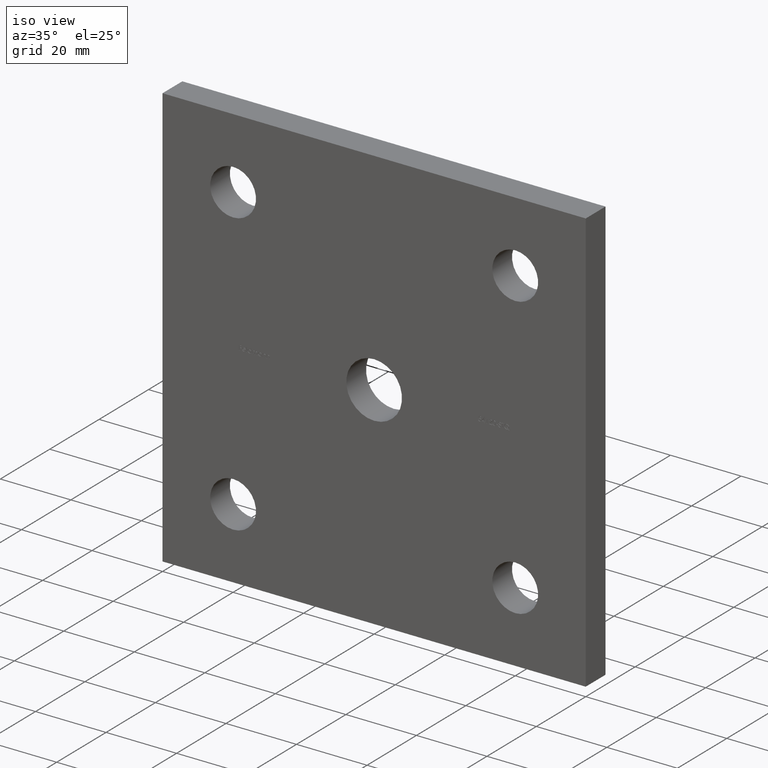
[diagram: clean part render]
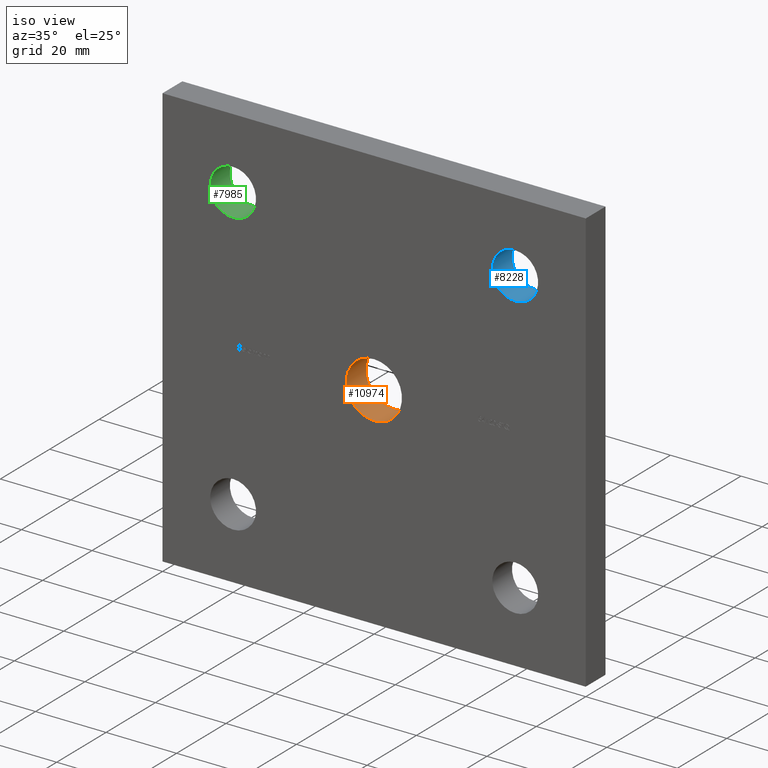
[diagram: same view with three faces highlighted in distinct colors, each labeled with its STEP entity id]
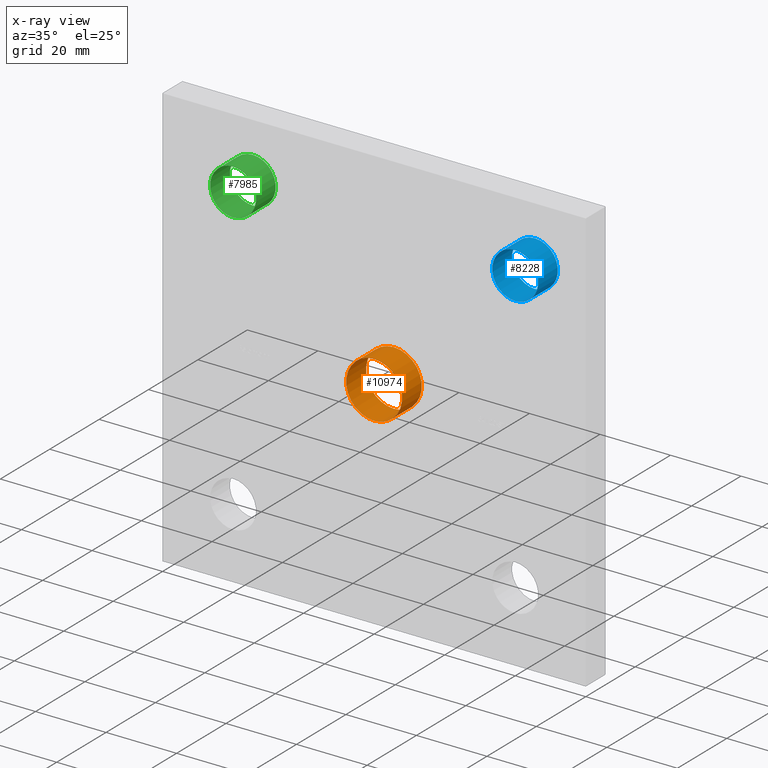
[diagram: x-ray of the same camera — body ghosted, the three highlighted faces saturated]
A machine part, iso view with three faces highlighted in distinct colors.
The next image is the same camera in x-ray (body ghosted, the three faces saturated) — at least one of them is partly hidden behind the body in this view.
Their STEP definitions:

[orange] entity #10974 — the highlighted cylindrical surface (bore or boss wall) has radius 7.9 mm, axis along (-0, 1, -0).
#495 = CARTESIAN_POINT ( 'NONE',  ( 0.000000000000000000, 8.000000000000000000, 7.900000000000000355 ) ) ;
#562 = DIRECTION ( 'NONE',  ( -0.000000000000000000, 1.000000000000000000, -0.000000000000000000 ) ) ;
#1687 = AXIS2_PLACEMENT_3D ( 'NONE', #10125, #5296, #3455 ) ;
#1738 = EDGE_CURVE ( 'NONE', #2426, #2426, #8070, .T. ) ;
#1809 = DIRECTION ( 'NONE',  ( 0.000000000000000000, 0.000000000000000000, 1.000000000000000000 ) ) ;
#1848 = EDGE_CURVE ( 'NONE', #8846, #8846, #11501, .T. ) ;
#2426 = VERTEX_POINT ( 'NONE', #3400 ) ;
#3400 = CARTESIAN_POINT ( 'NONE',  ( 0.000000000000000000, 0.000000000000000000, 7.900000000000000355 ) ) ;
#3455 = DIRECTION ( 'NONE',  ( 0.000000000000000000, 0.000000000000000000, 1.000000000000000000 ) ) ;
#3776 = CARTESIAN_POINT ( 'NONE',  ( 0.000000000000000000, 8.000000000000000000, 0.000000000000000000 ) ) ;
#4241 = FACE_OUTER_BOUND ( 'NONE', #10832, .T. ) ;
#5296 = DIRECTION ( 'NONE',  ( 0.000000000000000000, 1.000000000000000000, 0.000000000000000000 ) ) ;
#5694 = DIRECTION ( 'NONE',  ( 0.000000000000000000, 0.000000000000000000, 1.000000000000000000 ) ) ;
#5904 = AXIS2_PLACEMENT_3D ( 'NONE', #6418, #562, #1809 ) ;
#6418 = CARTESIAN_POINT ( 'NONE',  ( 0.000000000000000000, 0.000000000000000000, 0.000000000000000000 ) ) ;
#6842 = ORIENTED_EDGE ( 'NONE', *, *, #1738, .F. ) ;
#7659 = DIRECTION ( 'NONE',  ( 0.000000000000000000, 1.000000000000000000, 0.000000000000000000 ) ) ;
#7929 = ORIENTED_EDGE ( 'NONE', *, *, #1848, .T. ) ;
#8070 = CIRCLE ( 'NONE', #1687, 7.900000000000000355 ) ;
#8421 = CYLINDRICAL_SURFACE ( 'NONE', #5904, 7.900000000000000355 ) ;
#8582 = AXIS2_PLACEMENT_3D ( 'NONE', #3776, #7659, #5694 ) ;
#8846 = VERTEX_POINT ( 'NONE', #495 ) ;
#9612 = FACE_OUTER_BOUND ( 'NONE', #11816, .T. ) ;
#10125 = CARTESIAN_POINT ( 'NONE',  ( 0.000000000000000000, 0.000000000000000000, 0.000000000000000000 ) ) ;
#10832 = EDGE_LOOP ( 'NONE', ( #6842 ) ) ;
#10974 = ADVANCED_FACE ( 'NONE', ( #4241, #9612 ), #8421, .F. ) ;
#11501 = CIRCLE ( 'NONE', #8582, 7.900000000000000355 ) ;
#11816 = EDGE_LOOP ( 'NONE', ( #7929 ) ) ;

[blue] entity #8228 — the highlighted cylindrical surface (bore or boss wall) has radius 6.5 mm, axis along (-0, 1, -0).
#804 = CYLINDRICAL_SURFACE ( 'NONE', #8763, 6.499999999999999112 ) ;
#1804 = DIRECTION ( 'NONE',  ( -0.000000000000000000, 1.000000000000000000, -0.000000000000000000 ) ) ;
#2049 = ORIENTED_EDGE ( 'NONE', *, *, #7559, .T. ) ;
#2910 = EDGE_LOOP ( 'NONE', ( #2049 ) ) ;
#3019 = AXIS2_PLACEMENT_3D ( 'NONE', #7737, #9687, #4988 ) ;
#3361 = CARTESIAN_POINT ( 'NONE',  ( 40.00000000000000000, 0.000000000000000000, 40.00000000000000000 ) ) ;
#3662 = CARTESIAN_POINT ( 'NONE',  ( 40.00000000000000000, 0.000000000000000000, 40.00000000000000000 ) ) ;
#4988 = DIRECTION ( 'NONE',  ( 0.000000000000000000, 0.000000000000000000, 1.000000000000000000 ) ) ;
#5322 = FACE_OUTER_BOUND ( 'NONE', #2910, .T. ) ;
#5922 = CIRCLE ( 'NONE', #3019, 6.499999999999999112 ) ;
#6779 = AXIS2_PLACEMENT_3D ( 'NONE', #3361, #10994, #8993 ) ;
#6912 = VERTEX_POINT ( 'NONE', #10111 ) ;
#7257 = FACE_OUTER_BOUND ( 'NONE', #9307, .T. ) ;
#7275 = CARTESIAN_POINT ( 'NONE',  ( 40.00000000000000000, 8.000000000000000000, 46.50000000000000000 ) ) ;
#7357 = VERTEX_POINT ( 'NONE', #7275 ) ;
#7559 = EDGE_CURVE ( 'NONE', #7357, #7357, #5922, .T. ) ;
#7708 = DIRECTION ( 'NONE',  ( 0.000000000000000000, 0.000000000000000000, 1.000000000000000000 ) ) ;
#7737 = CARTESIAN_POINT ( 'NONE',  ( 40.00000000000000000, 8.000000000000000000, 40.00000000000000000 ) ) ;
#7963 = CIRCLE ( 'NONE', #6779, 6.499999999999999112 ) ;
#8228 = ADVANCED_FACE ( 'NONE', ( #7257, #5322 ), #804, .F. ) ;
#8559 = ORIENTED_EDGE ( 'NONE', *, *, #12302, .F. ) ;
#8763 = AXIS2_PLACEMENT_3D ( 'NONE', #3662, #1804, #7708 ) ;
#8993 = DIRECTION ( 'NONE',  ( 0.000000000000000000, 0.000000000000000000, 1.000000000000000000 ) ) ;
#9307 = EDGE_LOOP ( 'NONE', ( #8559 ) ) ;
#9687 = DIRECTION ( 'NONE',  ( 0.000000000000000000, 1.000000000000000000, 0.000000000000000000 ) ) ;
#10111 = CARTESIAN_POINT ( 'NONE',  ( 40.00000000000000000, 0.000000000000000000, 46.50000000000000000 ) ) ;
#10994 = DIRECTION ( 'NONE',  ( 0.000000000000000000, 1.000000000000000000, 0.000000000000000000 ) ) ;
#12302 = EDGE_CURVE ( 'NONE', #6912, #6912, #7963, .T. ) ;

[green] entity #7985 — the highlighted cylindrical surface (bore or boss wall) has radius 6.5 mm, axis along (-0, 1, -0).
#218 = FACE_OUTER_BOUND ( 'NONE', #7045, .T. ) ;
#708 = DIRECTION ( 'NONE',  ( 0.000000000000000000, 1.000000000000000000, 0.000000000000000000 ) ) ;
#787 = CARTESIAN_POINT ( 'NONE',  ( -40.00000000000000000, 8.000000000000000000, 40.00000000000000000 ) ) ;
#823 = CIRCLE ( 'NONE', #10438, 6.499999999999999112 ) ;
#1476 = CARTESIAN_POINT ( 'NONE',  ( -40.00000000000000000, 0.000000000000000000, 40.00000000000000000 ) ) ;
#1755 = DIRECTION ( 'NONE',  ( 0.000000000000000000, 1.000000000000000000, 0.000000000000000000 ) ) ;
#2253 = EDGE_LOOP ( 'NONE', ( #6329 ) ) ;
#2603 = CARTESIAN_POINT ( 'NONE',  ( -40.00000000000000000, 0.000000000000000000, 46.50000000000000000 ) ) ;
#2634 = CYLINDRICAL_SURFACE ( 'NONE', #12353, 6.499999999999999112 ) ;
#2855 = EDGE_CURVE ( 'NONE', #12138, #12138, #6406, .T. ) ;
#3657 = DIRECTION ( 'NONE',  ( 0.000000000000000000, 0.000000000000000000, 1.000000000000000000 ) ) ;
#4142 = CARTESIAN_POINT ( 'NONE',  ( -40.00000000000000000, 8.000000000000000000, 46.50000000000000000 ) ) ;
#5135 = DIRECTION ( 'NONE',  ( 0.000000000000000000, 0.000000000000000000, 1.000000000000000000 ) ) ;
#6329 = ORIENTED_EDGE ( 'NONE', *, *, #2855, .T. ) ;
#6406 = CIRCLE ( 'NONE', #8277, 6.499999999999999112 ) ;
#6919 = EDGE_CURVE ( 'NONE', #11091, #11091, #823, .T. ) ;
#7045 = EDGE_LOOP ( 'NONE', ( #8475 ) ) ;
#7124 = FACE_OUTER_BOUND ( 'NONE', #2253, .T. ) ;
#7135 = DIRECTION ( 'NONE',  ( -0.000000000000000000, 1.000000000000000000, -0.000000000000000000 ) ) ;
#7985 = ADVANCED_FACE ( 'NONE', ( #218, #7124 ), #2634, .F. ) ;
#8277 = AXIS2_PLACEMENT_3D ( 'NONE', #787, #1755, #11291 ) ;
#8460 = CARTESIAN_POINT ( 'NONE',  ( -40.00000000000000000, 0.000000000000000000, 40.00000000000000000 ) ) ;
#8475 = ORIENTED_EDGE ( 'NONE', *, *, #6919, .F. ) ;
#10438 = AXIS2_PLACEMENT_3D ( 'NONE', #8460, #708, #3657 ) ;
#11091 = VERTEX_POINT ( 'NONE', #2603 ) ;
#11291 = DIRECTION ( 'NONE',  ( 0.000000000000000000, 0.000000000000000000, 1.000000000000000000 ) ) ;
#12138 = VERTEX_POINT ( 'NONE', #4142 ) ;
#12353 = AXIS2_PLACEMENT_3D ( 'NONE', #1476, #7135, #5135 ) ;